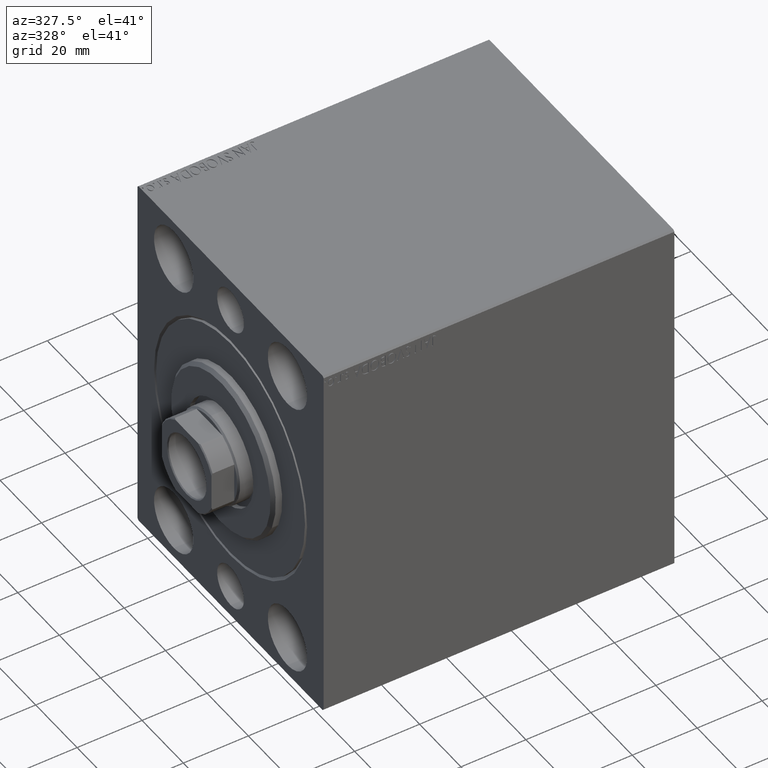
[diagram: clean part render]
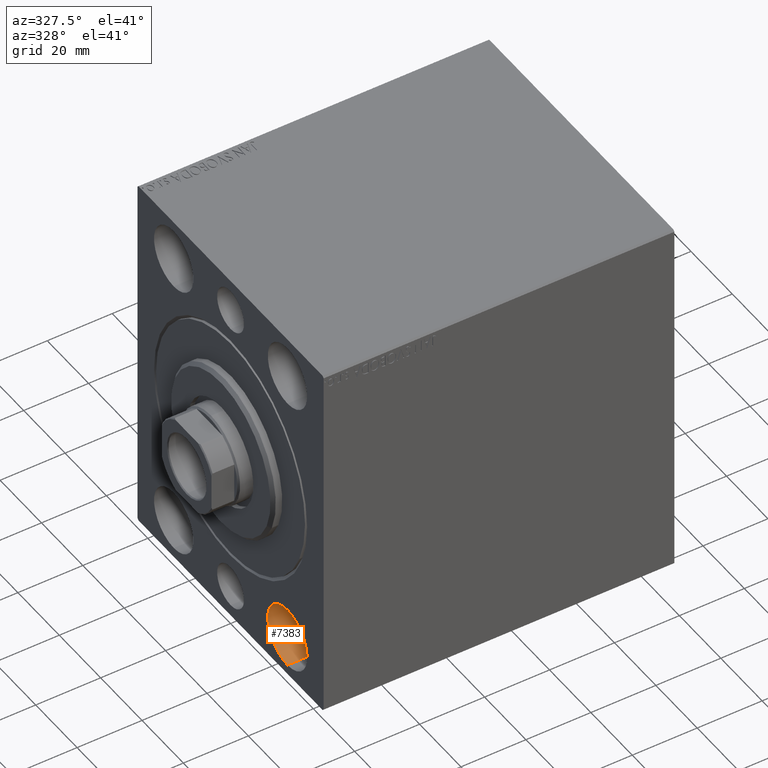
[diagram: same view with one face highlighted and labeled with its STEP entity id]
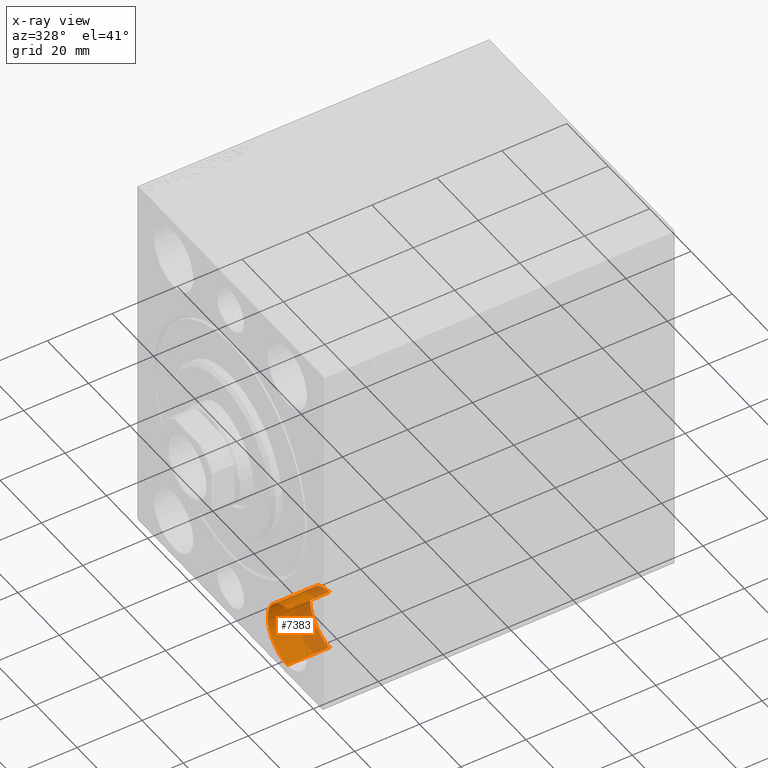
[diagram: x-ray of the same camera — body ghosted, the highlighted face saturated]
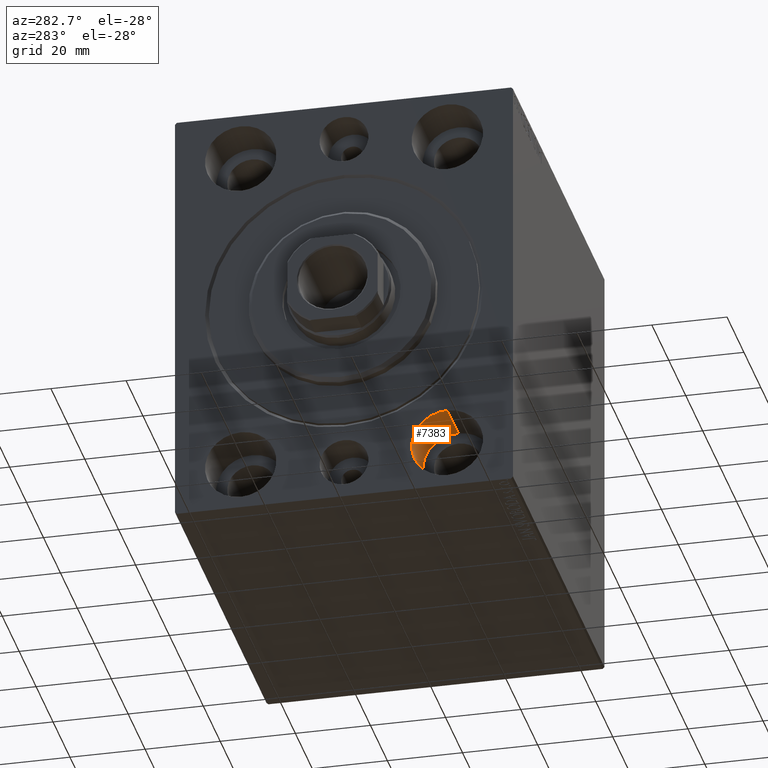
[diagram: same view with one face highlighted and labeled with its STEP entity id]
A machine part, auxiliary view. The second image highlights one B-rep face of the part: STEP entity #7383.
The next image is the same camera in x-ray: the body ghosted, the highlighted face saturated — about 34% of this face is hidden behind the body in this view.
A second angle (auxiliary view) of the same face is appended — the face is thin or edge-on in the first view.
In plain terms, the highlighted cylindrical surface (partial cylindrical patch) has radius 9.5 mm, axis along (-1, -0, -0).
Its self-contained STEP definition (entity closure, byte-faithful):
#1418 = CARTESIAN_POINT ( 'NONE',  ( 13.00000000000000000, -27.50000000000000000, -54.49999999999998579 ) ) ;
#1710 = CIRCLE ( 'NONE', #18716, 9.500000000000001776 ) ;
#2541 = EDGE_CURVE ( 'NONE', #12102, #13861, #17046, .T. ) ;
#2943 = LINE ( 'NONE', #29103, #22765 ) ;
#3525 = ORIENTED_EDGE ( 'NONE', *, *, #35362, .F. ) ;
#3538 = CARTESIAN_POINT ( 'NONE',  ( 0.000000000000000000, -27.50000000000000000, -44.99999999999998579 ) ) ;
#5677 = CARTESIAN_POINT ( 'NONE',  ( 13.00000000000000000, -27.50000000000000000, -35.49999999999998579 ) ) ;
#6874 = DIRECTION ( 'NONE',  ( -1.000000000000000000, 0.000000000000000000, 0.000000000000000000 ) ) ;
#7383 = ADVANCED_FACE ( 'NONE', ( #29413 ), #42917, .F. ) ;
#10431 = DIRECTION ( 'NONE',  ( 0.000000000000000000, 0.000000000000000000, 1.000000000000000000 ) ) ;
#10505 = EDGE_CURVE ( 'NONE', #15623, #13861, #2943, .T. ) ;
#12102 = VERTEX_POINT ( 'NONE', #36319 ) ;
#13861 = VERTEX_POINT ( 'NONE', #27449 ) ;
#14631 = VERTEX_POINT ( 'NONE', #42798 ) ;
#14777 = EDGE_LOOP ( 'NONE', ( #29334, #3525, #39635, #40511 ) ) ;
#15623 = VERTEX_POINT ( 'NONE', #1418 ) ;
#15883 = LINE ( 'NONE', #5677, #18500 ) ;
#15913 = DIRECTION ( 'NONE',  ( 0.000000000000000000, 0.000000000000000000, 1.000000000000000000 ) ) ;
#17046 = CIRCLE ( 'NONE', #38931, 9.500000000000001776 ) ;
#18500 = VECTOR ( 'NONE', #32714, 1000.000000000000000 ) ;
#18716 = AXIS2_PLACEMENT_3D ( 'NONE', #19108, #33277, #10431 ) ;
#19108 = CARTESIAN_POINT ( 'NONE',  ( 13.00000000000000000, -27.50000000000000000, -44.99999999999998579 ) ) ;
#20403 = DIRECTION ( 'NONE',  ( 0.000000000000000000, 0.000000000000000000, 1.000000000000000000 ) ) ;
#21751 = EDGE_CURVE ( 'NONE', #14631, #12102, #15883, .T. ) ;
#22562 = DIRECTION ( 'NONE',  ( -1.000000000000000000, -0.000000000000000000, -0.000000000000000000 ) ) ;
#22765 = VECTOR ( 'NONE', #32877, 1000.000000000000000 ) ;
#27449 = CARTESIAN_POINT ( 'NONE',  ( 0.000000000000000000, -27.50000000000000000, -54.49999999999998579 ) ) ;
#29103 = CARTESIAN_POINT ( 'NONE',  ( 13.00000000000000000, -27.50000000000000000, -54.49999999999998579 ) ) ;
#29334 = ORIENTED_EDGE ( 'NONE', *, *, #10505, .F. ) ;
#29413 = FACE_OUTER_BOUND ( 'NONE', #14777, .T. ) ;
#32714 = DIRECTION ( 'NONE',  ( -1.000000000000000000, -0.000000000000000000, -0.000000000000000000 ) ) ;
#32877 = DIRECTION ( 'NONE',  ( -1.000000000000000000, -0.000000000000000000, -0.000000000000000000 ) ) ;
#33177 = CARTESIAN_POINT ( 'NONE',  ( 13.00000000000000000, -27.50000000000000000, -44.99999999999998579 ) ) ;
#33277 = DIRECTION ( 'NONE',  ( -1.000000000000000000, 0.000000000000000000, 0.000000000000000000 ) ) ;
#35362 = EDGE_CURVE ( 'NONE', #14631, #15623, #1710, .T. ) ;
#36319 = CARTESIAN_POINT ( 'NONE',  ( 0.000000000000000000, -27.50000000000000000, -35.49999999999998579 ) ) ;
#38283 = AXIS2_PLACEMENT_3D ( 'NONE', #33177, #22562, #15913 ) ;
#38931 = AXIS2_PLACEMENT_3D ( 'NONE', #3538, #6874, #20403 ) ;
#39635 = ORIENTED_EDGE ( 'NONE', *, *, #21751, .T. ) ;
#40511 = ORIENTED_EDGE ( 'NONE', *, *, #2541, .T. ) ;
#42798 = CARTESIAN_POINT ( 'NONE',  ( 13.00000000000000000, -27.50000000000000000, -35.49999999999998579 ) ) ;
#42917 = CYLINDRICAL_SURFACE ( 'NONE', #38283, 9.500000000000001776 ) ;